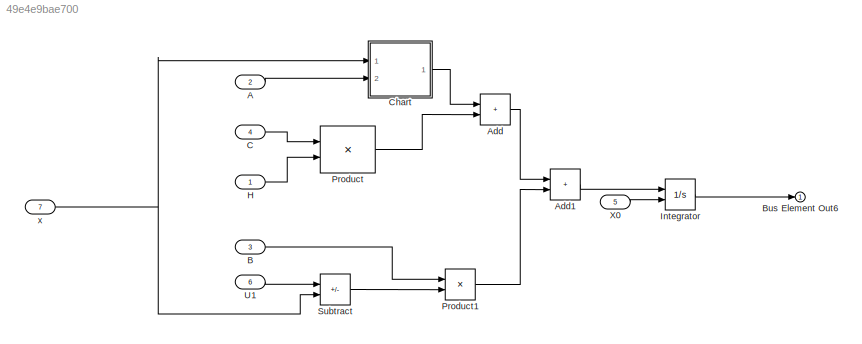
MODEL slx_49e4e9bae700
KIND model
CONFIG AbsTol = auto
CONFIG EnableMultiTasking = off
CONFIG FixedStep = auto
CONFIG MaxStep = auto
CONFIG MinStep = auto
CONFIG RelTol = 1e-3
CONFIG SampleTimeConstraint = Unconstrained
CONFIG SolverName = VariableStepAuto
CONFIG StartTime = 0.0
CONFIG StopTime = 10.0
BLOCK [Inport] A
  Port = 2
BLOCK [Sum] Add
  IconShape = rectangular
  Ports = [2, 1]
BLOCK [Sum] Add1
  IconShape = rectangular
  Ports = [2, 1]
BLOCK [Inport] B
  Port = 3
BLOCK [Outport] Bus Element Out6
BLOCK [Inport] C
  Port = 4
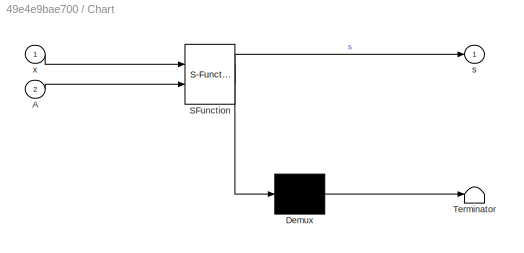
BLOCK [SubSystem] Chart
  ErrorFcn = Stateflow.Translate.translate
  PermitHierarchicalResolution = ExplicitOnly
  Ports = [2, 1]
  RequestExecContextInheritance = off
  SFBlockType = Chart
  TreatAsAtomicUnit = on
BLOCK [Demux] Chart/ Demux 
  Outputs = 1
  Ports = [1, 1]
BLOCK [S-Function] Chart/ SFunction 
  EnableBusSupport = on
  FunctionName = sf_sfun
  PortCounts = [2 2]
  Ports = [2, 2]
  SFcnIsStateOwnerBlock = off
  SFunctionDeploymentMode = off
  Tag = Stateflow S-Function 3
BLOCK [Terminator] Chart/ Terminator 
BLOCK [Inport] Chart/A
  Port = 2
BLOCK [Outport] Chart/s
BLOCK [Inport] Chart/x
BLOCK [Inport] H
BLOCK [Integrator] Integrator
  InitialConditionSource = external
  Ports = [2, 1]
BLOCK [Product] Product
  Ports = [2, 1]
BLOCK [Product] Product1
  Ports = [2, 1]
BLOCK [Sum] Subtract
  IconShape = rectangular
  Inputs = +-
  Ports = [2, 1]
BLOCK [Inport] U1
  Port = 6
BLOCK [Inport] X0
  Port = 5
BLOCK [Inport] x
  Port = 7
LINE A:1 -> Chart:2
LINE Add1:1 -> Integrator:1
LINE Add:1 -> Add1:1
LINE B:1 -> Product1:1
LINE C:1 -> Product:1
LINE Chart:1 -> Add:1
LINE H:1 -> Product:2
LINE Integrator:1 -> Bus Element Out6:1
LINE Product1:1 -> Add1:2
LINE Product:1 -> Add:2
LINE Subtract:1 -> Product1:2
LINE U1:1 -> Subtract:1
LINE X0:1 -> Integrator:2
NET x:1 -> Chart:1, Subtract:2
note: NET lines group one-source signal fan-out (src -> all destinations, sorted); 1:1 wires keep LINE
CHART Chart states=1 transitions=1
  STATE_LABEL 's3\ndu:\n s(1) = A(1,2)*(x(2)-x(1)) + A(1,3)*(x(3)-x(1)) + A(1,4)*(x(4)-x(1));\n s(2) = A(2,1)*(x(1)-x(2)) + A(2,3)*(x(3)-x(2)) + A(2,4)*(x(4)-x(2));\n s(3) = A(3,1)*(x(1)-x(3)) + A(3,2)*(x(2)-x(3)) + A(3,4)*(x(4)-x(3));\n s(4) = A(4,1)*(x(1)-x(4)) + A(4,2)*(x(2)-x(4)) + A(4,3)*(x(3)-x(4));\n'
CHART  states=0 transitions=0
